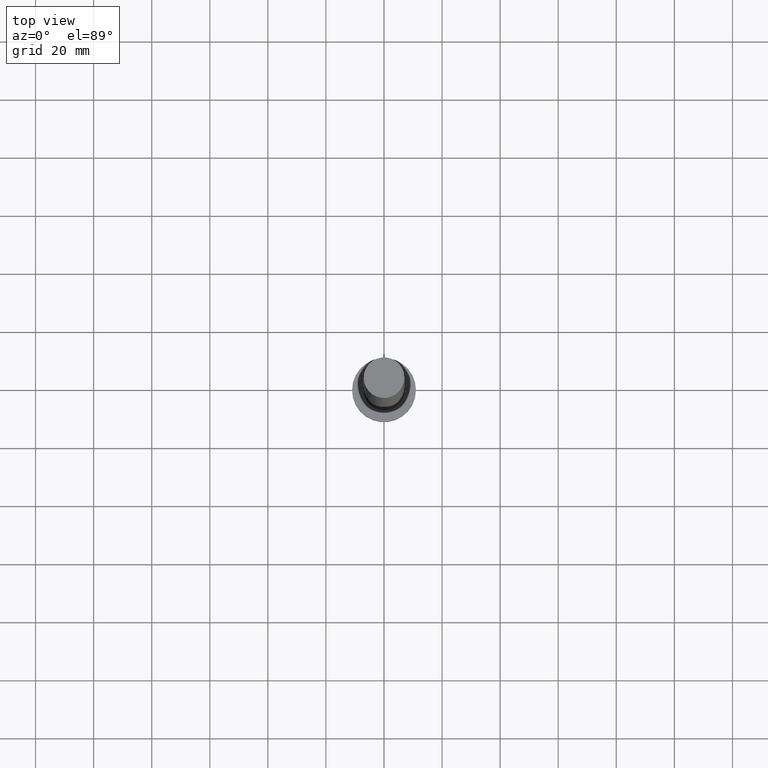
[diagram: clean part render]
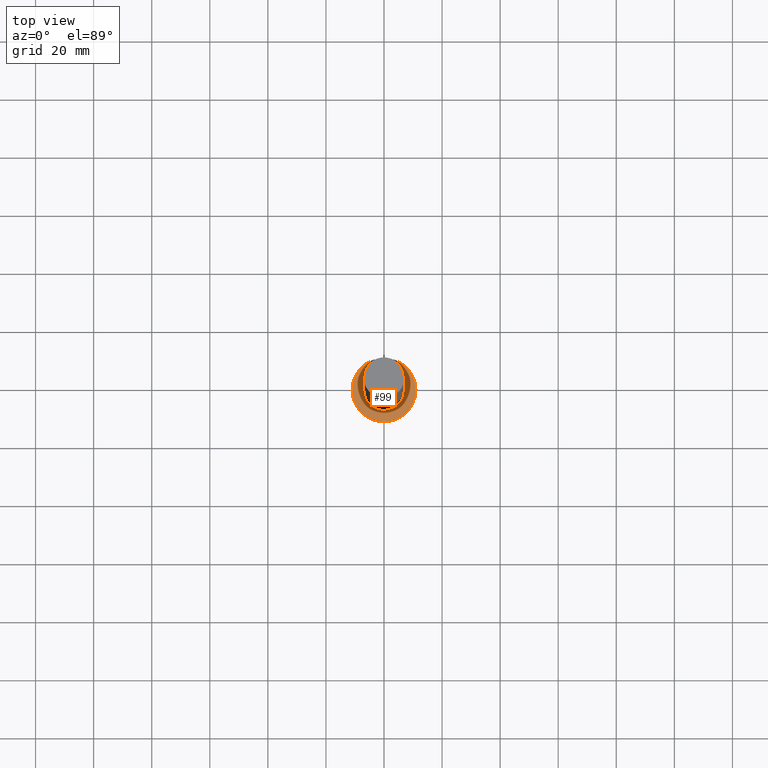
[diagram: same view with one face highlighted and labeled with its STEP entity id]
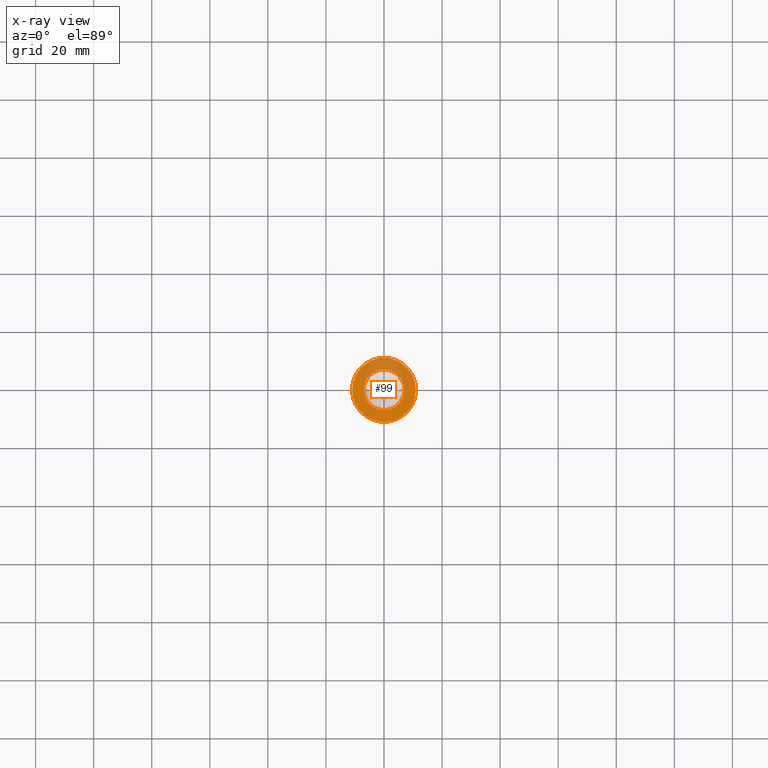
[diagram: x-ray of the same camera — body ghosted, the highlighted face saturated]
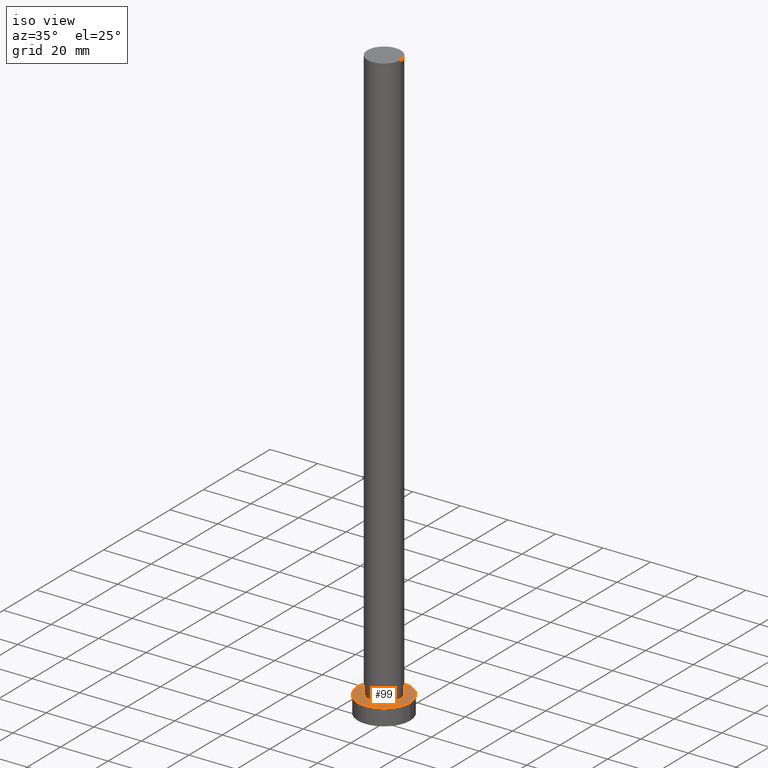
[diagram: same view with one face highlighted and labeled with its STEP entity id]
A machine part, top view. The second image highlights one B-rep face of the part: STEP entity #99.
The next image is the same camera in x-ray: the body ghosted, the highlighted face saturated — about 26% of this face is hidden behind the body in this view.
A second angle (iso view) of the same face is appended — the face is thin or edge-on in the first view.
In plain terms, the highlighted planar face has unit normal (0, 0, 1).
Its self-contained STEP definition (entity closure, byte-faithful):
#5 = ORIENTED_EDGE ( 'NONE', *, *, #82, .T. ) ;
#8 = ORIENTED_EDGE ( 'NONE', *, *, #95, .F. ) ;
#12 = CARTESIAN_POINT ( 'NONE',  ( -11.00000000000000000, 0.000000000000000000, 7.000000000000000000 ) ) ;
#14 = CIRCLE ( 'NONE', #129, 11.00000000000000000 ) ;
#28 = CIRCLE ( 'NONE', #35, 7.000000000000000000 ) ;
#35 = AXIS2_PLACEMENT_3D ( 'NONE', #145, #158, #39 ) ;
#36 = CARTESIAN_POINT ( 'NONE',  ( 0.000000000000000000, 0.000000000000000000, 7.000000000000000000 ) ) ;
#38 = CARTESIAN_POINT ( 'NONE',  ( 0.000000000000000000, 0.000000000000000000, 7.000000000000000000 ) ) ;
#39 = DIRECTION ( 'NONE',  ( 1.000000000000000000, 0.000000000000000000, 0.000000000000000000 ) ) ;
#53 = EDGE_CURVE ( 'NONE', #139, #226, #28, .T. ) ;
#66 = CARTESIAN_POINT ( 'NONE',  ( 0.000000000000000000, 0.000000000000000000, 7.000000000000000000 ) ) ;
#80 = CARTESIAN_POINT ( 'NONE',  ( -7.000000000000000000, 0.000000000000000000, 7.000000000000000000 ) ) ;
#82 = EDGE_CURVE ( 'NONE', #127, #98, #194, .T. ) ;
#90 = EDGE_LOOP ( 'NONE', ( #5, #113 ) ) ;
#93 = CARTESIAN_POINT ( 'NONE',  ( 7.000000000000000000, 8.572527594031473190E-16, 7.000000000000000000 ) ) ;
#95 = EDGE_CURVE ( 'NONE', #226, #139, #132, .T. ) ;
#98 = VERTEX_POINT ( 'NONE', #138 ) ;
#99 = ADVANCED_FACE ( 'NONE', ( #254, #157 ), #228, .T. ) ;
#113 = ORIENTED_EDGE ( 'NONE', *, *, #164, .T. ) ;
#114 = ORIENTED_EDGE ( 'NONE', *, *, #53, .F. ) ;
#117 = DIRECTION ( 'NONE',  ( 0.000000000000000000, 0.000000000000000000, 1.000000000000000000 ) ) ;
#122 = DIRECTION ( 'NONE',  ( 1.000000000000000000, 0.000000000000000000, 0.000000000000000000 ) ) ;
#127 = VERTEX_POINT ( 'NONE', #12 ) ;
#129 = AXIS2_PLACEMENT_3D ( 'NONE', #36, #117, #137 ) ;
#130 = EDGE_LOOP ( 'NONE', ( #8, #114 ) ) ;
#132 = CIRCLE ( 'NONE', #241, 7.000000000000000000 ) ;
#137 = DIRECTION ( 'NONE',  ( 1.000000000000000000, 0.000000000000000000, 0.000000000000000000 ) ) ;
#138 = CARTESIAN_POINT ( 'NONE',  ( 11.00000000000000000, 1.347111479062088405E-15, 7.000000000000000000 ) ) ;
#139 = VERTEX_POINT ( 'NONE', #93 ) ;
#145 = CARTESIAN_POINT ( 'NONE',  ( 0.000000000000000000, 0.000000000000000000, 7.000000000000000000 ) ) ;
#153 = DIRECTION ( 'NONE',  ( 1.000000000000000000, 0.000000000000000000, 0.000000000000000000 ) ) ;
#156 = AXIS2_PLACEMENT_3D ( 'NONE', #66, #211, #122 ) ;
#157 = FACE_OUTER_BOUND ( 'NONE', #90, .T. ) ;
#158 = DIRECTION ( 'NONE',  ( 0.000000000000000000, 0.000000000000000000, 1.000000000000000000 ) ) ;
#164 = EDGE_CURVE ( 'NONE', #98, #127, #14, .T. ) ;
#168 = DIRECTION ( 'NONE',  ( 0.000000000000000000, 0.000000000000000000, 1.000000000000000000 ) ) ;
#194 = CIRCLE ( 'NONE', #156, 11.00000000000000000 ) ;
#206 = DIRECTION ( 'NONE',  ( 1.000000000000000000, 0.000000000000000000, -0.000000000000000000 ) ) ;
#211 = DIRECTION ( 'NONE',  ( 0.000000000000000000, 0.000000000000000000, 1.000000000000000000 ) ) ;
#219 = AXIS2_PLACEMENT_3D ( 'NONE', #38, #223, #206 ) ;
#223 = DIRECTION ( 'NONE',  ( 0.000000000000000000, 0.000000000000000000, 1.000000000000000000 ) ) ;
#226 = VERTEX_POINT ( 'NONE', #80 ) ;
#228 = PLANE ( 'NONE',  #219 ) ;
#241 = AXIS2_PLACEMENT_3D ( 'NONE', #251, #168, #153 ) ;
#251 = CARTESIAN_POINT ( 'NONE',  ( 0.000000000000000000, 0.000000000000000000, 7.000000000000000000 ) ) ;
#254 = FACE_BOUND ( 'NONE', #130, .T. ) ;